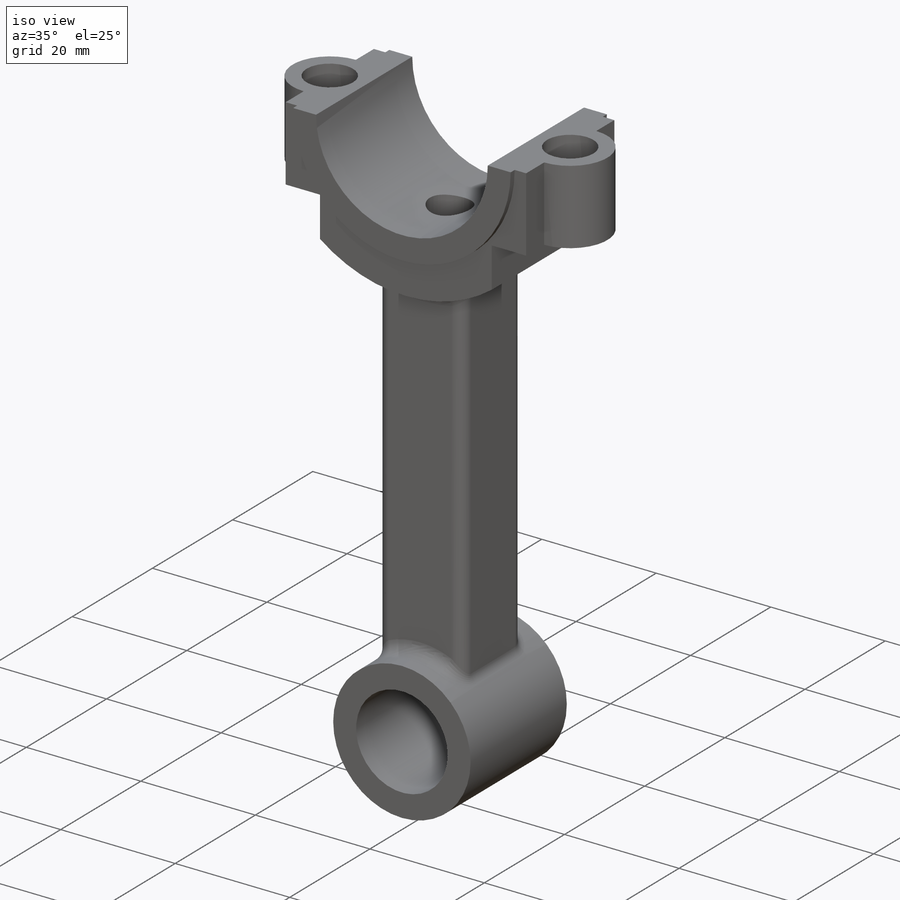
[diagram: iso view]
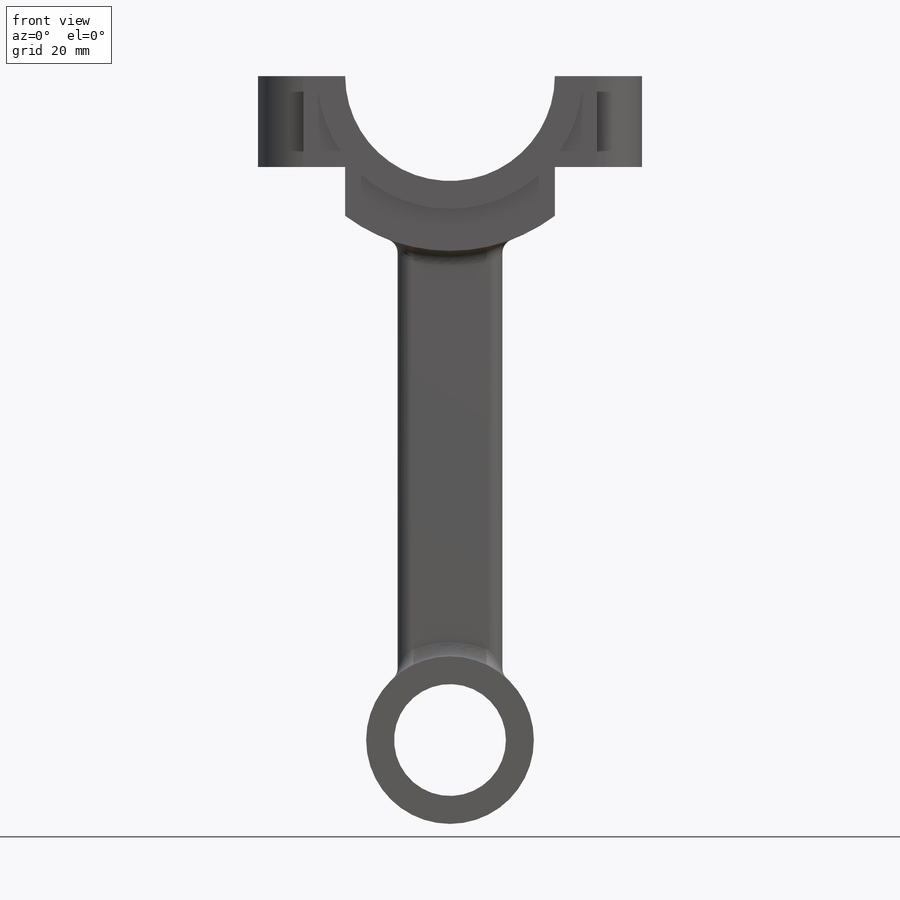
[diagram: front view]
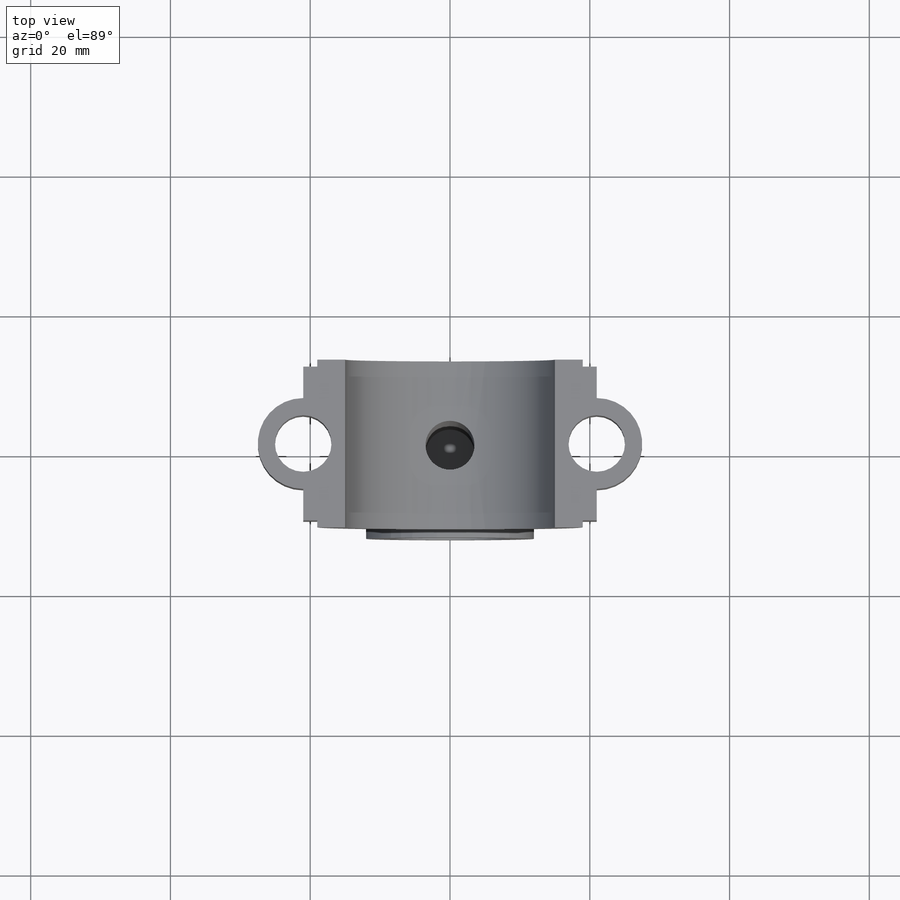
[diagram: top view]
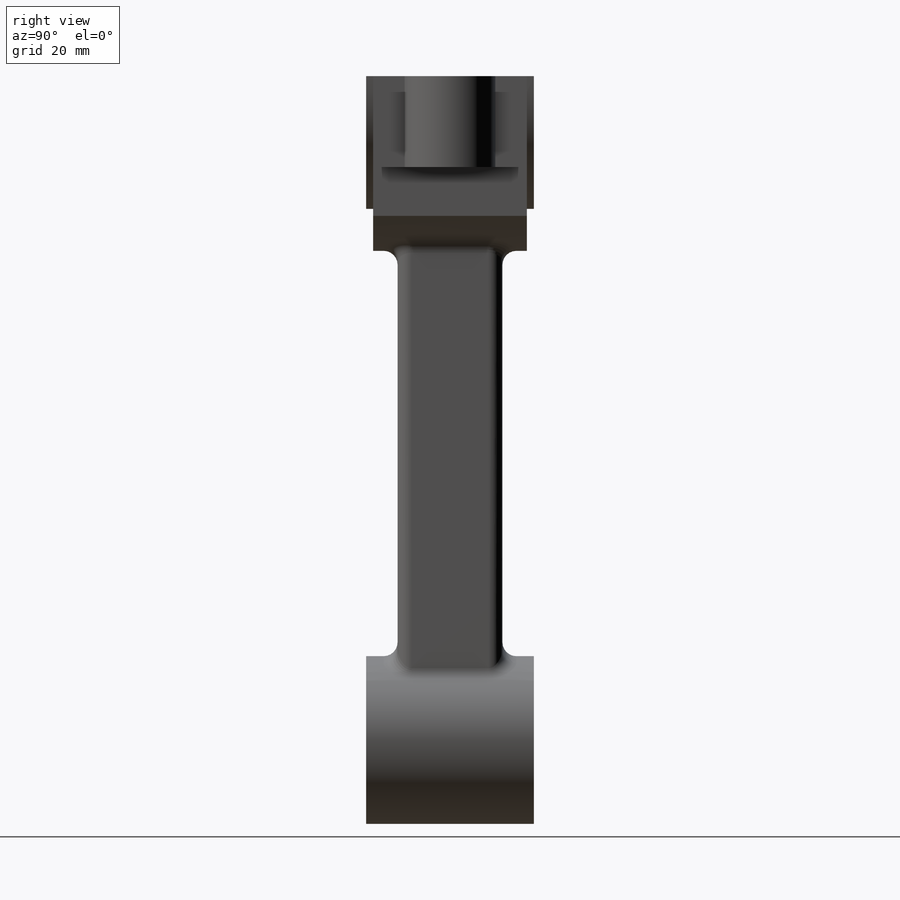
[diagram: right view]
SOLIDWORKS PART (.sldprt)
format: sldprt  version: not decoded by parser v0  size: 431,616 bytes
history: native  units: mm
features: sketch x7, extrude x4, plane x3, cut_extrude x3, fillet x3, material x1, mirror x1 (+9 scaffold rows collapsed)
feature tree (31):
  scaffold x9  (default folders/planes/origin — collapsed)
  material  "Сталь"
  plane  "Спереди"
  plane  "Сверху"
  plane  "Справа"
  sketch  "Эскиз1"  dims[D1=24.0mm D2=16.0mm]
  extrude  "Бобышка-Вытянуть1"  Depth=12mm
  sketch  "Эскиз3"  dims[D1=30.0mm D3=50.0mm D2=95.0mm D4=55.0mm D5=26.0mm D6=30.0mm]
  extrude  "Бобышка-Вытянуть2"  Depth=11mm
  sketch  "Эскиз2"  dims[D1=15.0mm]
  extrude  "Бобышка-Вытянуть3"  Depth=30mm
  sketch  "Эскиз4"  dims[D1=8.1mm D2=21.0mm]
  cut_extrude  "Вырез-Вытянуть1"  [1 undecoded]
  mirror  "Зеркальное отражение1"
  fillet  "Скругление1"  Radius=2mm
  sketch  "Эскиз5"  dims[D1=1.0mm]
  extrude  "Бобышка-Вытянуть4"  Depth=1mm
  fillet  "Зеркальное отражение2"  [1 undecoded]
  sketch  "Эскиз6"  dims[D1=7.0mm]
  cut_extrude  "Вырез-Вытянуть2"  [1 undecoded]
  sketch  "Эскиз7"
  cut_extrude  "Вырез-Вытянуть3"  [1 undecoded]
  fillet  "Зеркальное отражение3"  [1 undecoded]
decode coverage: 11 of 18 modeling features carry decoded parameters
note: 5 parameter values undecoded
summary: no parameter record found for 5 features
note: suppression state not decoded; provenance and decode notes live in map.json
